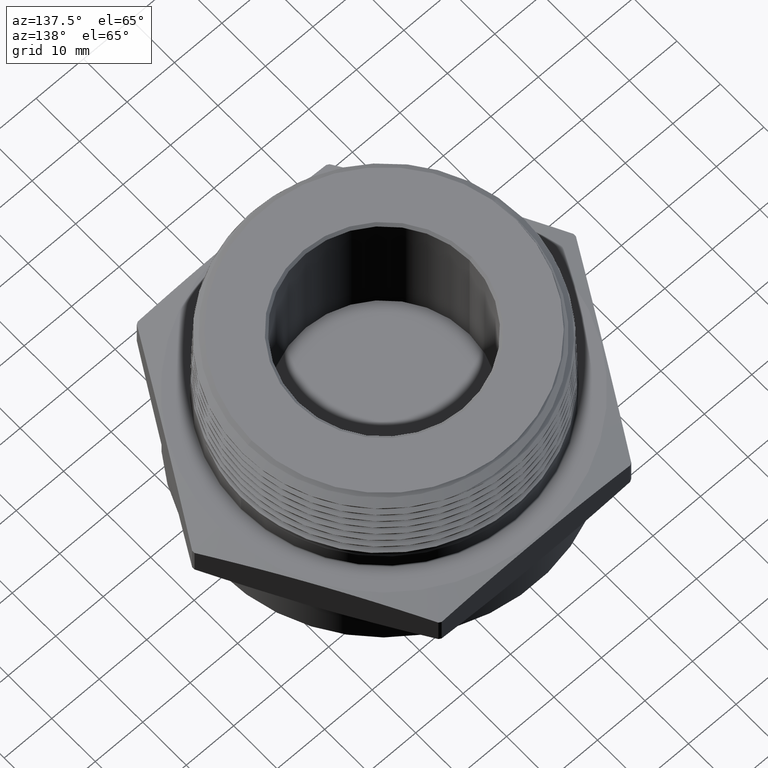
[diagram: clean part render]
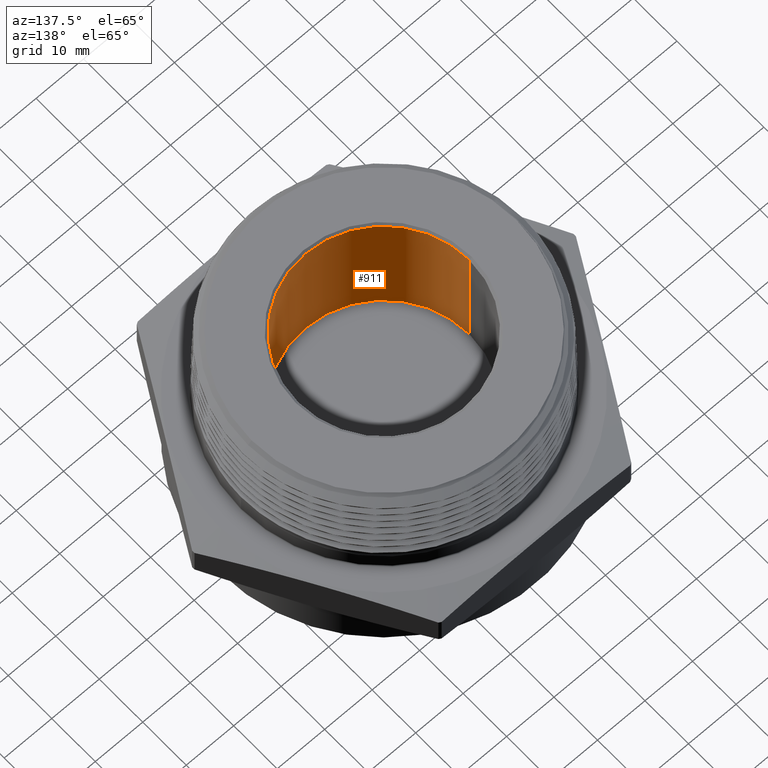
[diagram: same view with one face highlighted and labeled with its STEP entity id]
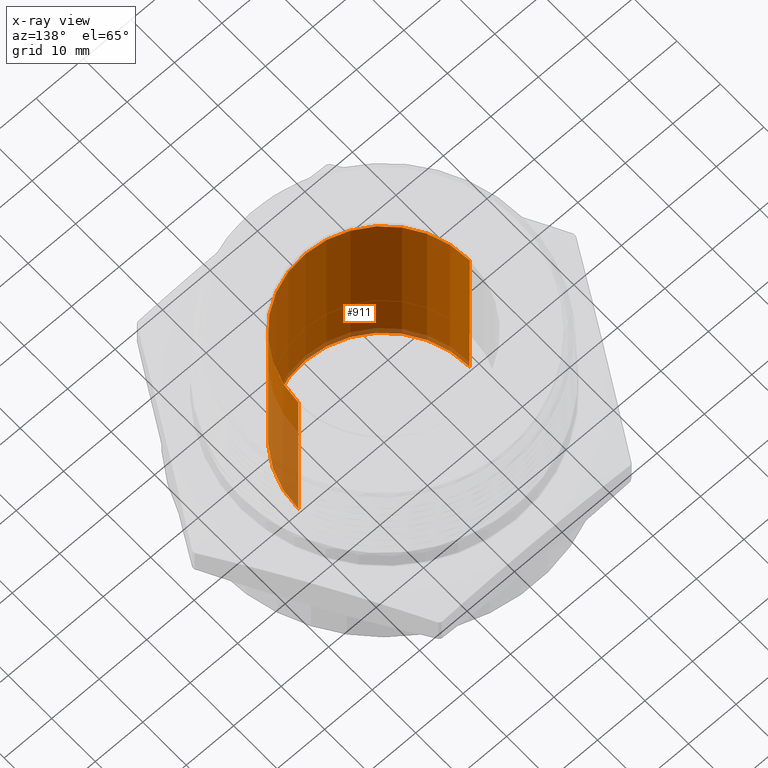
[diagram: x-ray of the same camera — body ghosted, the highlighted face saturated]
A machine part, auxiliary view. The second image highlights one B-rep face of the part: STEP entity #911.
The next image is the same camera in x-ray: the body ghosted, the highlighted face saturated — about 13% of this face is hidden behind the body in this view.
In plain terms, the highlighted cylindrical surface (partial cylindrical patch) has radius 18.034 mm, axis along (0, 0, -1).
Its self-contained STEP definition (entity closure, byte-faithful):
#264 = VERTEX_POINT ( 'NONE', #723 ) ;
#265 = VERTEX_POINT ( 'NONE', #724 ) ;
#281 = VERTEX_POINT ( 'NONE', #661 ) ;
#333 = CYLINDRICAL_SURFACE ( 'NONE', #1900, 0.7099999999999999600 ) ;
#340 = FACE_OUTER_BOUND ( 'NONE', #7832, .T. ) ;
#360 = CIRCLE ( 'NONE', #1933, 0.7099999999999998500 ) ;
#399 = LINE ( 'NONE', #7560, #404 ) ;
#400 = CIRCLE ( 'NONE', #1930, 0.7099999999999998500 ) ;
#404 = VECTOR ( 'NONE', #7559, 39.37007874015748100 ) ;
#405 = LINE ( 'NONE', #7569, #408 ) ;
#408 = VECTOR ( 'NONE', #7564, 39.37007874015748100 ) ;
#661 = CARTESIAN_POINT ( 'NONE',  ( 0.7099999999999998500, 8.694992273946207000E-017, -0.3599999999999999900 ) ) ;
#723 = CARTESIAN_POINT ( 'NONE',  ( -0.7099999999999998500, 8.817456953860938400E-017, 1.179999999999999900 ) ) ;
#724 = CARTESIAN_POINT ( 'NONE',  ( -0.7099999999999998500, 0.0000000000000000000, -0.3599999999999999900 ) ) ;
#911 = ADVANCED_FACE ( 'NONE', ( #340 ), #333, .F. ) ;
#948 = EDGE_CURVE ( 'NONE', #7913, #281, #399, .T. ) ;
#949 = EDGE_CURVE ( 'NONE', #7913, #264, #400, .T. ) ;
#950 = EDGE_CURVE ( 'NONE', #265, #281, #360, .T. ) ;
#951 = EDGE_CURVE ( 'NONE', #264, #265, #405, .T. ) ;
#1687 = DIRECTION ( 'NONE',  ( -1.000000000000000000, 0.0000000000000000000, 0.0000000000000000000 ) ) ;
#1688 = CARTESIAN_POINT ( 'NONE',  ( 1.592040838891558700E-017, 0.0000000000000000000, -0.3599999999999999900 ) ) ;
#1689 = DIRECTION ( 'NONE',  ( 1.194951895306585200E-017, -0.0000000000000000000, -1.000000000000000000 ) ) ;
#1900 = AXIS2_PLACEMENT_3D ( 'NONE', #1688, #1689, #1687 ) ;
#1930 = AXIS2_PLACEMENT_3D ( 'NONE', #7565, #7566, #7567 ) ;
#1933 = AXIS2_PLACEMENT_3D ( 'NONE', #7570, #7571, #7572 ) ;
#6471 = CARTESIAN_POINT ( 'NONE',  ( 0.7099999999999998500, 0.0000000000000000000, 1.179999999999999900 ) ) ;
#7559 = DIRECTION ( 'NONE',  ( 1.194951895306585400E-017, -0.0000000000000000000, -1.000000000000000000 ) ) ;
#7560 = CARTESIAN_POINT ( 'NONE',  ( 0.7099999999999999600, 8.694992273946207000E-017, -0.3599999999999999900 ) ) ;
#7564 = DIRECTION ( 'NONE',  ( 1.194951895306585400E-017, -0.0000000000000000000, -1.000000000000000000 ) ) ;
#7565 = CARTESIAN_POINT ( 'NONE',  ( -2.481850798805822400E-018, 0.0000000000000000000, 1.179999999999999900 ) ) ;
#7566 = DIRECTION ( 'NONE',  ( 1.194951895306585200E-017, -0.0000000000000000000, -1.000000000000000000 ) ) ;
#7567 = DIRECTION ( 'NONE',  ( -1.000000000000000000, 0.0000000000000000000, 0.0000000000000000000 ) ) ;
#7569 = CARTESIAN_POINT ( 'NONE',  ( -0.7099999999999999600, 0.0000000000000000000, -0.3599999999999999900 ) ) ;
#7570 = CARTESIAN_POINT ( 'NONE',  ( -2.481850798805822400E-018, 0.0000000000000000000, -0.3599999999999999900 ) ) ;
#7571 = DIRECTION ( 'NONE',  ( 0.0000000000000000000, 0.0000000000000000000, 1.000000000000000000 ) ) ;
#7572 = DIRECTION ( 'NONE',  ( 1.000000000000000000, 0.0000000000000000000, 0.0000000000000000000 ) ) ;
#7659 = ORIENTED_EDGE ( 'NONE', *, *, #949, .F. ) ;
#7660 = ORIENTED_EDGE ( 'NONE', *, *, #948, .T. ) ;
#7661 = ORIENTED_EDGE ( 'NONE', *, *, #950, .F. ) ;
#7662 = ORIENTED_EDGE ( 'NONE', *, *, #951, .F. ) ;
#7832 = EDGE_LOOP ( 'NONE', ( #7659, #7660, #7661, #7662 ) ) ;
#7913 = VERTEX_POINT ( 'NONE', #6471 ) ;